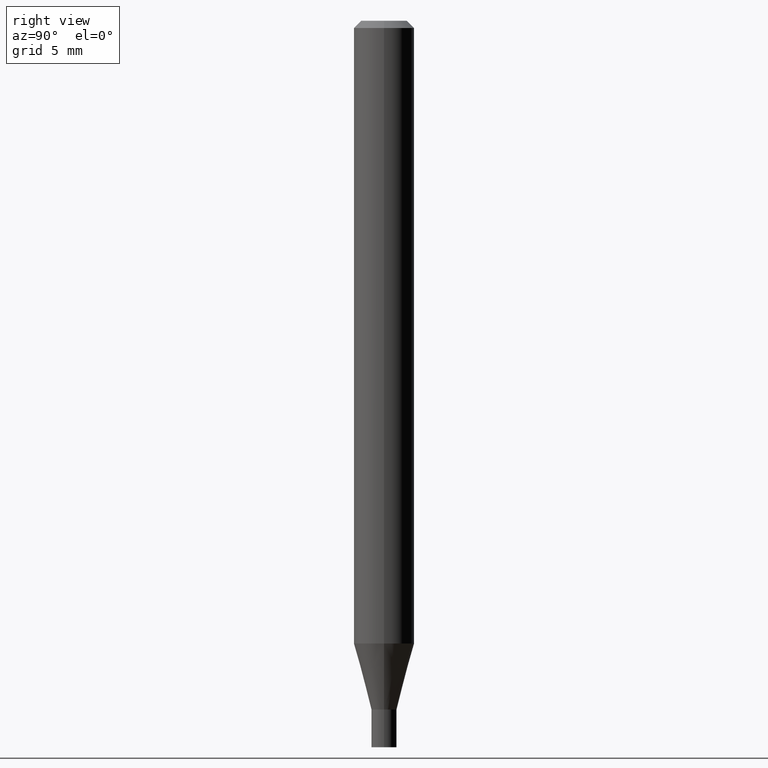
[diagram: clean part render]
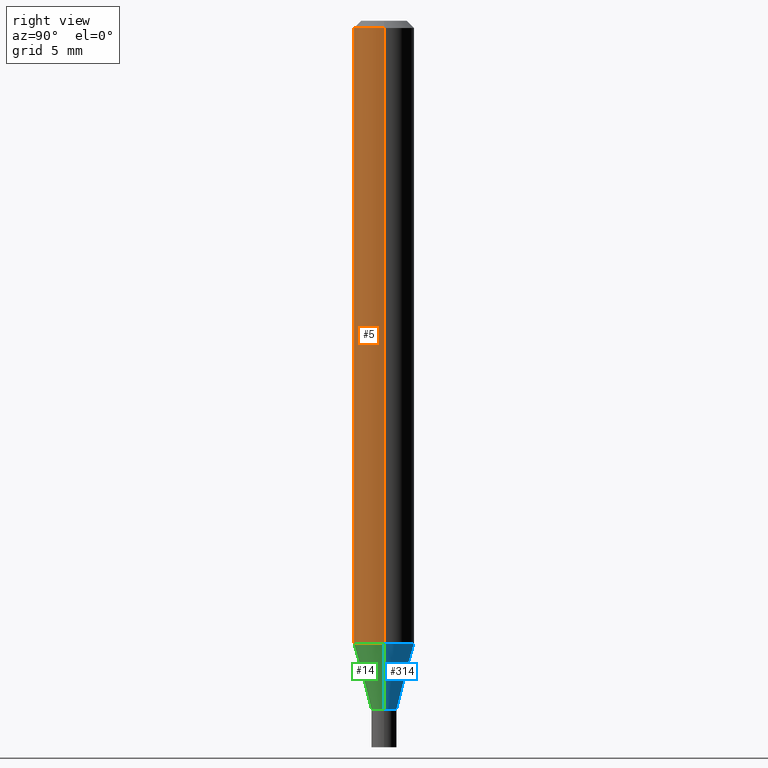
[diagram: same view with three faces highlighted in distinct colors, each labeled with its STEP entity id]
A machine part, right view with three faces highlighted in distinct colors.
Their STEP definitions:

[orange] entity #5 — the highlighted cylindrical surface (edge-blend (fillet) strip) has radius 1.5875 mm, axis along (-0, 0, 1).
#5 = ADVANCED_FACE ( 'NONE', ( #160 ), #435, .T. ) ;
#16 = VECTOR ( 'NONE', #94, 39.37007874015748143 ) ;
#25 = CARTESIAN_POINT ( 'NONE',  ( 0.06250000000000000000, -4.364351673553916694E-16, 3.047610484872459871E-30 ) ) ;
#47 = DIRECTION ( 'NONE',  ( 1.000000000000000000, -6.982962677686262766E-15, 0.000000000000000000 ) ) ;
#49 = AXIS2_PLACEMENT_3D ( 'NONE', #187, #327, #288 ) ;
#58 = CARTESIAN_POINT ( 'NONE',  ( 0.06250000000000000000, -4.925712551306544226E-15, -1.285780145523736984 ) ) ;
#71 = EDGE_CURVE ( 'NONE', #380, #130, #142, .T. ) ;
#72 = AXIS2_PLACEMENT_3D ( 'NONE', #116, #251, #402 ) ;
#94 = DIRECTION ( 'NONE',  ( -2.445468806185136877E-29, 3.491481338843145188E-15, 1.000000000000000000 ) ) ;
#100 = DIRECTION ( 'NONE',  ( -2.445468806185136877E-29, 3.491481338843145188E-15, 1.000000000000000000 ) ) ;
#116 = CARTESIAN_POINT ( 'NONE',  ( 0.000000000000000000, 0.000000000000000000, 0.000000000000000000 ) ) ;
#128 = ORIENTED_EDGE ( 'NONE', *, *, #446, .F. ) ;
#130 = VERTEX_POINT ( 'NONE', #58 ) ;
#135 = CARTESIAN_POINT ( 'NONE',  ( -0.06250000000000000000, 4.440892098500626162E-16, -3.074334431409316114E-30 ) ) ;
#136 = VERTEX_POINT ( 'NONE', #367 ) ;
#142 = CIRCLE ( 'NONE', #450, 0.06250000000000000000 ) ;
#143 = CIRCLE ( 'NONE', #49, 0.06250000000000000000 ) ;
#146 = CARTESIAN_POINT ( 'NONE',  ( 3.144335237490484216E-29, -4.489277383951151768E-15, -1.285780145523736984 ) ) ;
#160 = FACE_OUTER_BOUND ( 'NONE', #333, .T. ) ;
#165 = LINE ( 'NONE', #25, #16 ) ;
#176 = CARTESIAN_POINT ( 'NONE',  ( -0.06250000000000000000, -4.045188174101089941E-15, -1.285780145523736984 ) ) ;
#187 = CARTESIAN_POINT ( 'NONE',  ( 3.668203209277705088E-31, -5.237222008264718399E-17, -0.01499999999999999944 ) ) ;
#194 = DIRECTION ( 'NONE',  ( -2.445468806185136597E-29, 3.491481338843145583E-15, 1.000000000000000000 ) ) ;
#209 = VERTEX_POINT ( 'NONE', #361 ) ;
#234 = EDGE_CURVE ( 'NONE', #130, #209, #165, .T. ) ;
#251 = DIRECTION ( 'NONE',  ( -2.445468806185136597E-29, 3.491481338843145583E-15, 1.000000000000000000 ) ) ;
#263 = ORIENTED_EDGE ( 'NONE', *, *, #286, .F. ) ;
#286 = EDGE_CURVE ( 'NONE', #380, #136, #447, .T. ) ;
#288 = DIRECTION ( 'NONE',  ( 1.000000000000000000, -6.982962677686266711E-15, 0.000000000000000000 ) ) ;
#301 = ORIENTED_EDGE ( 'NONE', *, *, #71, .T. ) ;
#327 = DIRECTION ( 'NONE',  ( -2.445468806185136597E-29, 3.491481338843145583E-15, 1.000000000000000000 ) ) ;
#331 = VECTOR ( 'NONE', #100, 39.37007874015748143 ) ;
#333 = EDGE_LOOP ( 'NONE', ( #263, #301, #411, #128 ) ) ;
#361 = CARTESIAN_POINT ( 'NONE',  ( 0.06250000000000000000, -4.888073874380388472E-16, -0.01499999999999999944 ) ) ;
#367 = CARTESIAN_POINT ( 'NONE',  ( -0.06250000000000000000, -1.826735592166837005E-15, -0.01499999999999999944 ) ) ;
#380 = VERTEX_POINT ( 'NONE', #176 ) ;
#402 = DIRECTION ( 'NONE',  ( 1.000000000000000000, -6.982962677686266711E-15, 4.876176775795935793E-29 ) ) ;
#411 = ORIENTED_EDGE ( 'NONE', *, *, #234, .T. ) ;
#435 = CYLINDRICAL_SURFACE ( 'NONE', #72, 0.06250000000000000000 ) ;
#446 = EDGE_CURVE ( 'NONE', #136, #209, #143, .T. ) ;
#447 = LINE ( 'NONE', #135, #331 ) ;
#450 = AXIS2_PLACEMENT_3D ( 'NONE', #146, #194, #47 ) ;

[blue] entity #314 — the highlighted conical surface has half-angle 15 deg.
#32 = EDGE_CURVE ( 'NONE', #35, #305, #243, .T. ) ;
#35 = VERTEX_POINT ( 'NONE', #180 ) ;
#39 = CARTESIAN_POINT ( 'NONE',  ( 3.144335237490484216E-29, -4.489277383951151768E-15, -1.285780145523736984 ) ) ;
#41 = DIRECTION ( 'NONE',  ( 1.000000000000000000, -6.982962677686262766E-15, 0.000000000000000000 ) ) ;
#50 = DIRECTION ( 'NONE',  ( 0.2588190451025211836, 1.565188264969622559E-15, 0.9659258262890679791 ) ) ;
#58 = CARTESIAN_POINT ( 'NONE',  ( 0.06250000000000000000, -4.925712551306544226E-15, -1.285780145523736984 ) ) ;
#62 = EDGE_LOOP ( 'NONE', ( #64, #172, #329, #156 ) ) ;
#64 = ORIENTED_EDGE ( 'NONE', *, *, #32, .T. ) ;
#66 = LINE ( 'NONE', #277, #461 ) ;
#73 = VECTOR ( 'NONE', #50, 39.37007874015748854 ) ;
#75 = DIRECTION ( 'NONE',  ( -2.445468806185136597E-29, 3.491481338843145583E-15, 1.000000000000000000 ) ) ;
#78 = AXIS2_PLACEMENT_3D ( 'NONE', #39, #320, #41 ) ;
#89 = CARTESIAN_POINT ( 'NONE',  ( 0.02600000000000019656, -5.146443493454798413E-15, -1.421999999999999931 ) ) ;
#117 = EDGE_CURVE ( 'NONE', #130, #380, #257, .T. ) ;
#118 = CARTESIAN_POINT ( 'NONE',  ( 3.477456642395264859E-29, -4.964886463834953365E-15, -1.421999999999999931 ) ) ;
#130 = VERTEX_POINT ( 'NONE', #58 ) ;
#156 = ORIENTED_EDGE ( 'NONE', *, *, #319, .F. ) ;
#172 = ORIENTED_EDGE ( 'NONE', *, *, #182, .T. ) ;
#176 = CARTESIAN_POINT ( 'NONE',  ( -0.06250000000000000000, -4.045188174101089941E-15, -1.285780145523736984 ) ) ;
#180 = CARTESIAN_POINT ( 'NONE',  ( 0.02600000000000019656, -5.146443493454798413E-15, -1.421999999999999931 ) ) ;
#182 = EDGE_CURVE ( 'NONE', #305, #380, #66, .T. ) ;
#231 = LINE ( 'NONE', #89, #73 ) ;
#243 = CIRCLE ( 'NONE', #264, 0.02600000000000019656 ) ;
#250 = CONICAL_SURFACE ( 'NONE', #462, 0.02600000000000019656, 0.2617993877991499074 ) ;
#253 = DIRECTION ( 'NONE',  ( -2.445468806185136597E-29, 3.491481338843145583E-15, 1.000000000000000000 ) ) ;
#257 = CIRCLE ( 'NONE', #78, 0.06250000000000000000 ) ;
#264 = AXIS2_PLACEMENT_3D ( 'NONE', #291, #75, #372 ) ;
#277 = CARTESIAN_POINT ( 'NONE',  ( -0.02600000000000019656, -4.780145352537325575E-15, -1.421999999999999931 ) ) ;
#284 = DIRECTION ( 'NONE',  ( 1.000000000000000000, -6.982962677686280121E-15, 0.000000000000000000 ) ) ;
#289 = CARTESIAN_POINT ( 'NONE',  ( -0.02600000000000019656, -4.412666763319206969E-15, -1.421999999999999931 ) ) ;
#291 = CARTESIAN_POINT ( 'NONE',  ( 3.477456642395264859E-29, -4.964886463834953365E-15, -1.421999999999999931 ) ) ;
#305 = VERTEX_POINT ( 'NONE', #289 ) ;
#314 = ADVANCED_FACE ( 'NONE', ( #436 ), #250, .T. ) ;
#319 = EDGE_CURVE ( 'NONE', #35, #130, #231, .T. ) ;
#320 = DIRECTION ( 'NONE',  ( -2.445468806185136597E-29, 3.491481338843145583E-15, 1.000000000000000000 ) ) ;
#329 = ORIENTED_EDGE ( 'NONE', *, *, #117, .F. ) ;
#372 = DIRECTION ( 'NONE',  ( 1.000000000000000000, -6.982962677686280121E-15, 0.000000000000000000 ) ) ;
#380 = VERTEX_POINT ( 'NONE', #176 ) ;
#423 = DIRECTION ( 'NONE',  ( -0.2588190451025211836, 5.211531920934547886E-15, 0.9659258262890679791 ) ) ;
#436 = FACE_OUTER_BOUND ( 'NONE', #62, .T. ) ;
#461 = VECTOR ( 'NONE', #423, 39.37007874015748854 ) ;
#462 = AXIS2_PLACEMENT_3D ( 'NONE', #118, #253, #284 ) ;

[green] entity #14 — the highlighted conical surface has half-angle 15 deg.
#11 = CARTESIAN_POINT ( 'NONE',  ( 3.477456642395264859E-29, -4.964886463834953365E-15, -1.421999999999999931 ) ) ;
#14 = ADVANCED_FACE ( 'NONE', ( #46 ), #437, .T. ) ;
#19 = ORIENTED_EDGE ( 'NONE', *, *, #149, .T. ) ;
#35 = VERTEX_POINT ( 'NONE', #180 ) ;
#46 = FACE_OUTER_BOUND ( 'NONE', #293, .T. ) ;
#47 = DIRECTION ( 'NONE',  ( 1.000000000000000000, -6.982962677686262766E-15, 0.000000000000000000 ) ) ;
#50 = DIRECTION ( 'NONE',  ( 0.2588190451025211836, 1.565188264969622559E-15, 0.9659258262890679791 ) ) ;
#58 = CARTESIAN_POINT ( 'NONE',  ( 0.06250000000000000000, -4.925712551306544226E-15, -1.285780145523736984 ) ) ;
#66 = LINE ( 'NONE', #277, #461 ) ;
#71 = EDGE_CURVE ( 'NONE', #380, #130, #142, .T. ) ;
#73 = VECTOR ( 'NONE', #50, 39.37007874015748854 ) ;
#87 = CIRCLE ( 'NONE', #211, 0.02600000000000019656 ) ;
#89 = CARTESIAN_POINT ( 'NONE',  ( 0.02600000000000019656, -5.146443493454798413E-15, -1.421999999999999931 ) ) ;
#96 = ORIENTED_EDGE ( 'NONE', *, *, #182, .F. ) ;
#130 = VERTEX_POINT ( 'NONE', #58 ) ;
#142 = CIRCLE ( 'NONE', #450, 0.06250000000000000000 ) ;
#146 = CARTESIAN_POINT ( 'NONE',  ( 3.144335237490484216E-29, -4.489277383951151768E-15, -1.285780145523736984 ) ) ;
#149 = EDGE_CURVE ( 'NONE', #305, #35, #87, .T. ) ;
#151 = DIRECTION ( 'NONE',  ( -2.445468806185136597E-29, 3.491481338843145583E-15, 1.000000000000000000 ) ) ;
#176 = CARTESIAN_POINT ( 'NONE',  ( -0.06250000000000000000, -4.045188174101089941E-15, -1.285780145523736984 ) ) ;
#180 = CARTESIAN_POINT ( 'NONE',  ( 0.02600000000000019656, -5.146443493454798413E-15, -1.421999999999999931 ) ) ;
#182 = EDGE_CURVE ( 'NONE', #305, #380, #66, .T. ) ;
#191 = AXIS2_PLACEMENT_3D ( 'NONE', #11, #151, #254 ) ;
#194 = DIRECTION ( 'NONE',  ( -2.445468806185136597E-29, 3.491481338843145583E-15, 1.000000000000000000 ) ) ;
#211 = AXIS2_PLACEMENT_3D ( 'NONE', #221, #365, #459 ) ;
#221 = CARTESIAN_POINT ( 'NONE',  ( 3.477456642395264859E-29, -4.964886463834953365E-15, -1.421999999999999931 ) ) ;
#231 = LINE ( 'NONE', #89, #73 ) ;
#254 = DIRECTION ( 'NONE',  ( 1.000000000000000000, -6.982962677686280121E-15, 0.000000000000000000 ) ) ;
#277 = CARTESIAN_POINT ( 'NONE',  ( -0.02600000000000019656, -4.780145352537325575E-15, -1.421999999999999931 ) ) ;
#289 = CARTESIAN_POINT ( 'NONE',  ( -0.02600000000000019656, -4.412666763319206969E-15, -1.421999999999999931 ) ) ;
#293 = EDGE_LOOP ( 'NONE', ( #96, #19, #416, #312 ) ) ;
#305 = VERTEX_POINT ( 'NONE', #289 ) ;
#312 = ORIENTED_EDGE ( 'NONE', *, *, #71, .F. ) ;
#319 = EDGE_CURVE ( 'NONE', #35, #130, #231, .T. ) ;
#365 = DIRECTION ( 'NONE',  ( -2.445468806185136597E-29, 3.491481338843145583E-15, 1.000000000000000000 ) ) ;
#380 = VERTEX_POINT ( 'NONE', #176 ) ;
#416 = ORIENTED_EDGE ( 'NONE', *, *, #319, .T. ) ;
#423 = DIRECTION ( 'NONE',  ( -0.2588190451025211836, 5.211531920934547886E-15, 0.9659258262890679791 ) ) ;
#437 = CONICAL_SURFACE ( 'NONE', #191, 0.02600000000000019656, 0.2617993877991499074 ) ;
#450 = AXIS2_PLACEMENT_3D ( 'NONE', #146, #194, #47 ) ;
#459 = DIRECTION ( 'NONE',  ( 1.000000000000000000, -6.982962677686280121E-15, 0.000000000000000000 ) ) ;
#461 = VECTOR ( 'NONE', #423, 39.37007874015748854 ) ;